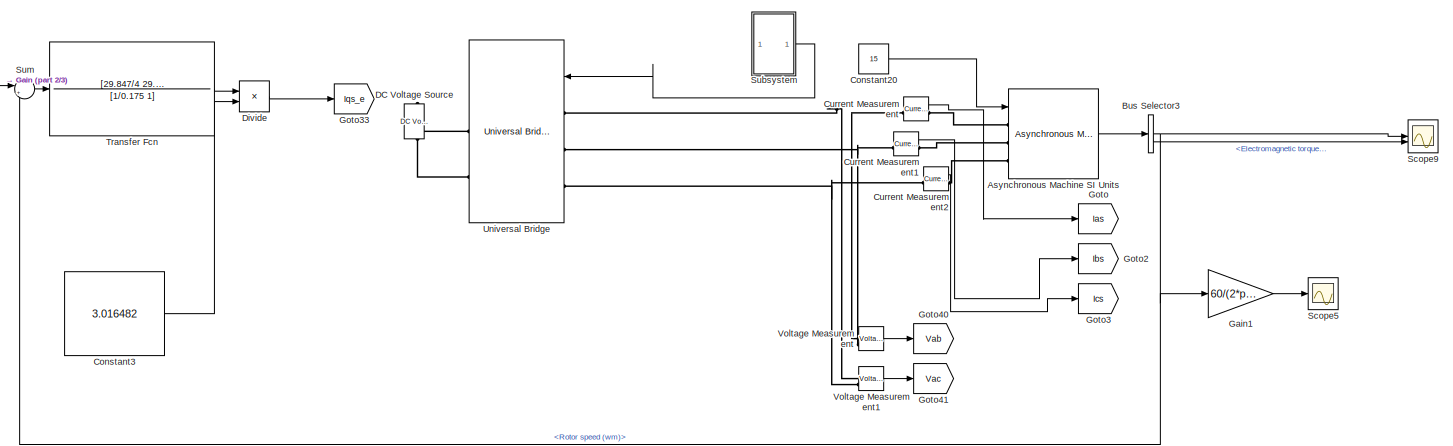
[diagram: root canvas - part 1/3, full width, top band]
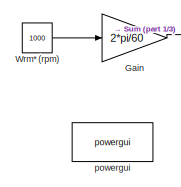
[diagram: root canvas - part 2/3, top left region]
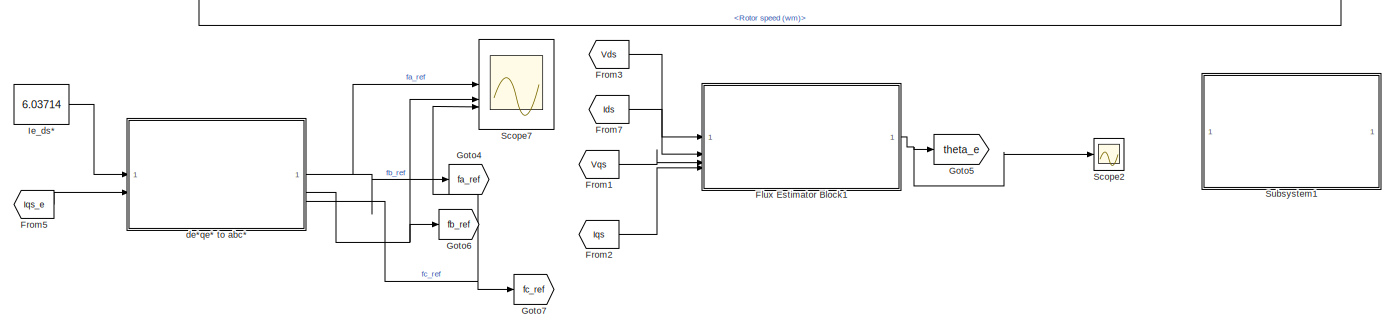
[diagram: root canvas - part 3/3, full width, bottom band]
MODEL slx_421fd923125e
KIND model
CONFIG AbsTol = auto
CONFIG EnableMultiTasking = off
CONFIG FixedStep = auto
CONFIG MaxStep = auto
CONFIG MinStep = auto
CONFIG RelTol = 1e-3
CONFIG SampleTimeConstraint = Unconstrained
CONFIG SolverName = VariableStepAuto
CONFIG StartTime = 0.0
CONFIG StopTime = 5
BLOCK [Reference] Asynchronous Machine SI Units  REF=spsAsynchronousMachineSIUnitsLib/Asynchronous Machine
SI Units
  LibrarySourceBlock = sps_lib/Electrical Machines/Asynchronous Machine\nSI Units
  SourceBlock = spsAsynchronousMachineSIUnitsLib/Asynchronous Machine\nSI Units
  SourceType = Asynchronous Machine
BLOCK [BusSelector] Bus Selector3
  OutputSignals = Mechanical.Rotor speed (wm),Mechanical.Electromagnetic torque Te (N*m)
BLOCK [Constant] Constant20
  Value = 15
BLOCK [Constant] Constant3
  Value = 3.016482
BLOCK [Reference] Current Measurement  REF=spsCurrentMeasurementLib/Current Measurement
  LibrarySourceBlock = sps_lib/Sensors and Measurements/Current Measurement
  SourceBlock = spsCurrentMeasurementLib/Current Measurement
  SourceType = Current Measurement
  UserDataPersistent = on
BLOCK [Reference] Current Measurement1  REF=spsCurrentMeasurementLib/Current Measurement
  LibrarySourceBlock = sps_lib/Sensors and Measurements/Current Measurement
  SourceBlock = spsCurrentMeasurementLib/Current Measurement
  SourceType = Current Measurement
  UserDataPersistent = on
BLOCK [Reference] Current Measurement2  REF=spsCurrentMeasurementLib/Current Measurement
  LibrarySourceBlock = sps_lib/Sensors and Measurements/Current Measurement
  SourceBlock = spsCurrentMeasurementLib/Current Measurement
  SourceType = Current Measurement
  UserDataPersistent = on
BLOCK [Reference] DC Voltage Source  REF=spsDCVoltageSourceLib/DC Voltage Source
  LibrarySourceBlock = sps_lib/Sources/DC Voltage Source
  SourceBlock = spsDCVoltageSourceLib/DC Voltage Source
  SourceType = DC Voltage Source
BLOCK [Product] Divide
  Inputs = */
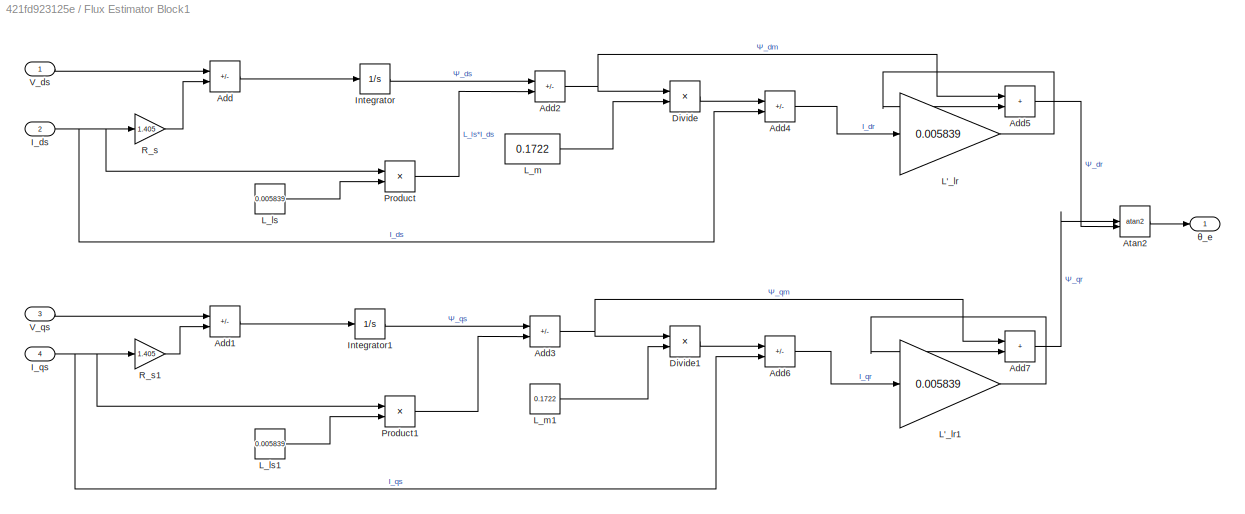
BLOCK [SubSystem] Flux Estimator Block1
BLOCK [Sum] Flux Estimator Block1/Add
  IconShape = rectangular
  Inputs = +-
BLOCK [Sum] Flux Estimator Block1/Add1
  IconShape = rectangular
  Inputs = +-
BLOCK [Sum] Flux Estimator Block1/Add2
  IconShape = rectangular
  Inputs = +-
BLOCK [Sum] Flux Estimator Block1/Add3
  IconShape = rectangular
  Inputs = +-
BLOCK [Sum] Flux Estimator Block1/Add4
  IconShape = rectangular
  Inputs = +-
BLOCK [Sum] Flux Estimator Block1/Add5
  IconShape = rectangular
BLOCK [Sum] Flux Estimator Block1/Add6
  IconShape = rectangular
  Inputs = +-
BLOCK [Sum] Flux Estimator Block1/Add7
  IconShape = rectangular
BLOCK [Trigonometry] Flux Estimator Block1/Atan2
  Operator = atan2
BLOCK [Product] Flux Estimator Block1/Divide
  Inputs = */
BLOCK [Product] Flux Estimator Block1/Divide1
  Inputs = */
BLOCK [Inport] Flux Estimator Block1/I_ds
  Port = 2
BLOCK [Inport] Flux Estimator Block1/I_qs
  Port = 4
BLOCK [Integrator] Flux Estimator Block1/Integrator
BLOCK [Integrator] Flux Estimator Block1/Integrator1
BLOCK [Gain] Flux Estimator Block1/L'_lr
  Gain = 0.005839
BLOCK [Gain] Flux Estimator Block1/L'_lr1
  Gain = 0.005839
BLOCK [Constant] Flux Estimator Block1/L_ls
  Value = 0.005839
BLOCK [Constant] Flux Estimator Block1/L_ls1
  Value = 0.005839
BLOCK [Constant] Flux Estimator Block1/L_m
  Value = 0.1722
BLOCK [Constant] Flux Estimator Block1/L_m1
  Value = 0.1722
BLOCK [Product] Flux Estimator Block1/Product
BLOCK [Product] Flux Estimator Block1/Product1
BLOCK [Gain] Flux Estimator Block1/R_s
  Gain = 1.405
BLOCK [Gain] Flux Estimator Block1/R_s1
  Gain = 1.405
BLOCK [Inport] Flux Estimator Block1/V_ds
BLOCK [Inport] Flux Estimator Block1/V_qs
  Port = 3
BLOCK [Outport] Flux Estimator Block1/θ_e
BLOCK [From] From1
  GotoTag = Vqs
  TagVisibility = global
BLOCK [From] From2
  GotoTag = Iqs
  TagVisibility = global
BLOCK [From] From3
  GotoTag = Vds
  TagVisibility = global
BLOCK [From] From5
  GotoTag = Iqs_e
  TagVisibility = global
BLOCK [From] From7
  GotoTag = Ids
  TagVisibility = global
BLOCK [Gain] Gain
  Gain = 2*pi/60
BLOCK [Gain] Gain1
  Gain = 60/(2*pi)
BLOCK [Goto] Goto
  GotoTag = Ias
  TagVisibility = global
BLOCK [Goto] Goto2
  GotoTag = Ibs
  TagVisibility = global
BLOCK [Goto] Goto3
  GotoTag = Ics
  TagVisibility = global
BLOCK [Goto] Goto33
  GotoTag = Iqs_e
  TagVisibility = global
BLOCK [Goto] Goto4
  GotoTag = fa_ref
  TagVisibility = global
BLOCK [Goto] Goto40
  GotoTag = Vab
  TagVisibility = global
BLOCK [Goto] Goto41
  GotoTag = Vac
  TagVisibility = global
BLOCK [Goto] Goto5
  GotoTag = theta_e
  TagVisibility = global
BLOCK [Goto] Goto6
  GotoTag = fb_ref
  TagVisibility = global
BLOCK [Goto] Goto7
  GotoTag = fc_ref
  TagVisibility = global
BLOCK [Constant] Ie_ds*
  Value = 6.03714
BLOCK [Scope] Scope2
  ActiveDisplayYMaximum = 3.9269805856564539
  ActiveDisplayYMinimum = -3.926985235827948
  Floating = off
  GraphicalSettings = {"AxesScalingProperties":{"AlignXAxis":"Center","AlignYAxis":"Center","AutoScaleXAxisLimits":false,"AxesScaling":"Manual","AxesScalingNumUpdates":10,"ExpandOnly":true,"ScaleAxesLimitsAtStop":false,"XAxisDataRange":100,"YAxisDataRange":80},"DisplayProperties":{"ColorOrder":["auto","auto","auto","auto","auto","auto","auto","auto","auto","auto","auto","auto","auto","auto","auto","auto","auto","auto",...<+2000ch>
  MultipleDisplayCache = [{"MaxYLimMag":10,"MaxYLimReal":3.9269805856564539,"MinYLimMag":0,"MinYLimReal":-3.926985235827948,"PlotAsMagnitudePhase":false,"ShowGrid":true,"ShowLegend":false,"Title":"%<SignalLabel>","YLabel":""}]
  NumInputPorts = 1
  ScopeFrameLocation = window
  WasSavedAsWebScope = on
  WindowPosition = [1.000000,49.000000,1536.000000,793.000000,]
BLOCK [Scope] Scope5
  ActiveDisplayYMaximum = 1796.0943319293749
  ActiveDisplayYMinimum = -1164.848987364373
  DataLoggingVariableName = ScopeData5
  Floating = off
  GraphicalSettings = {"Style":{"BackgroundColor":[0.12941176470588237,0.12941176470588237,0.12941176470588237],"AxesColor":[0.07058823529411765,0.07058823529411765,0.07058823529411765],"LabelsColor":[0.8509803921568627,0.8509803921568627,0.8509803921568627],"PreserveColors":false,"Visible":[true],"LineStyle":["-"],"LineWidth":[1.5],"BarWidth":[0.9],"LineColor":["auto"],"LineFaceAlpha":[1],"LineEdgeAlpha":[1],"Marker":...<+1989ch>
  MultipleDisplayCache = [{"MaxYLimMag":1796.0943319293749,"MaxYLimReal":1796.0943319293749,"MinYLimMag":0,"MinYLimReal":-1164.848987364373,"PlotAsMagnitudePhase":false,"ShowGrid":true,"ShowLegend":false,"Title":"%<SignalLabel>","YLabel":""}]
  NumInputPorts = 1
  ScopeFrameLocation = window
  WasSavedAsWebScope = on
  WindowPosition = [0.000000,36.000000,1536.000000,793.000000,]
BLOCK [Scope] Scope7
  ActiveDisplayYMaximum = 359759.36964912462
  ActiveDisplayYMinimum = -753403.64622958587
  DataLoggingVariableName = ScopeData7
  Floating = off
  GraphicalSettings = {"Style":{"BackgroundColor":[0.12941176470588237,0.12941176470588237,0.12941176470588237],"AxesColor":[0.07058823529411765,0.07058823529411765,0.07058823529411765],"LabelsColor":[0.8509803921568627,0.8509803921568627,0.8509803921568627],"PreserveColors":false,"Visible":[true,true,true],"LineStyle":["-","-","-"],"LineWidth":[1.5,1.5,1.5],"BarWidth":[0.9,0.9,0.9],"LineColor":["auto","auto","auto"],"...<+2848ch>
  LayoutDimensionsString = [3,1]
  MultipleDisplayCache = [{"MaxYLimMag":753403.64622958587,"MaxYLimReal":359759.36964912462,"MinYLimMag":0,"MinYLimReal":-753403.64622958587,"PlotAsMagnitudePhase":false,"ShowGrid":true,"ShowLegend":false,"Title":"%<SignalLabel>","YLabel":""},{"MaxYLimMag":427445.46812296374,"MaxYLimReal":427445.46812296374,"MinYLimMag":0,"MinYLimReal":-202075.75651681254,"PlotAsMagnitudePhase":false,"ShowGrid":true,"ShowLegend":false,"Ti...<+252ch>
  NumInputPorts = 3
  ScopeFrameLocation = window
  WasSavedAsWebScope = on
  WindowPosition = [616.000000,235.000000,560.000000,420.000000,]
BLOCK [Scope] Scope9
  ActiveDisplayYMaximum = 169.48104420293922
  ActiveDisplayYMinimum = 45.4669289684437
  DataLoggingVariableName = ScopeData9
  Floating = off
  GraphicalSettings = {"Style":{"BackgroundColor":[0.12941176470588237,0.12941176470588237,0.12941176470588237],"AxesColor":[0.07058823529411765,0.07058823529411765,0.07058823529411765],"LabelsColor":[0.8509803921568627,0.8509803921568627,0.8509803921568627],"PreserveColors":false,"Visible":[true,true],"LineStyle":["-","-"],"LineWidth":[1.5,1.5],"BarWidth":[0.9,0.9],"LineColor":["auto","auto"],"LineFaceAlpha":[1,1],"Li...<+2510ch>
  LayoutDimensionsString = [2,1]
  MultipleDisplayCache = [{"MaxYLimMag":169.48104420293922,"MaxYLimReal":169.48104420293922,"MinYLimMag":45.4669289684437,"MinYLimReal":45.4669289684437,"PlotAsMagnitudePhase":false,"ShowGrid":true,"ShowLegend":false,"Title":"%<SignalLabel>","YLabel":""},{"MaxYLimMag":135.06435626787029,"MaxYLimReal":135.06435626787029,"MinYLimMag":0,"MinYLimReal":-97.179111705864642,"PlotAsMagnitudePhase":false,"ShowGrid":true,"ShowLegen...<+47ch>
  NumInputPorts = 2
  ScopeFrameLocation = window
  WasSavedAsWebScope = on
  WindowPosition = [537.000000,172.000000,560.000000,420.000000,]
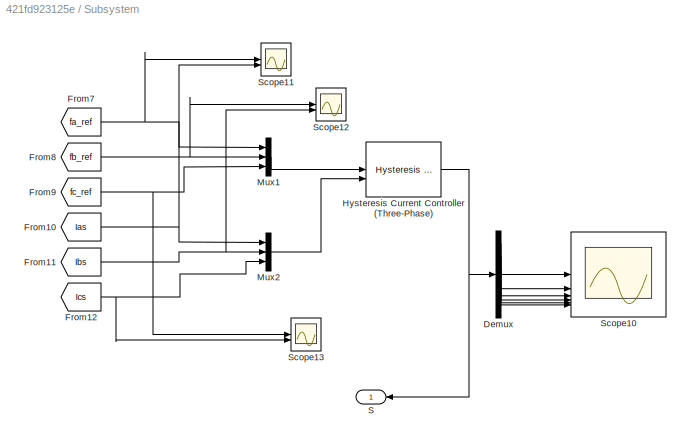
BLOCK [SubSystem] Subsystem
BLOCK [Demux] Subsystem/Demux
  Outputs = 6
BLOCK [From] Subsystem/From10
  GotoTag = Ias
  TagVisibility = global
BLOCK [From] Subsystem/From11
  GotoTag = Ibs
  TagVisibility = global
BLOCK [From] Subsystem/From12
  GotoTag = Ics
  TagVisibility = global
BLOCK [From] Subsystem/From7
  GotoTag = fa_ref
  TagVisibility = global
BLOCK [From] Subsystem/From8
  GotoTag = fb_ref
  TagVisibility = global
BLOCK [From] Subsystem/From9
  GotoTag = fc_ref
  TagVisibility = global
BLOCK [Reference] Subsystem/Hysteresis Current Controller (Three-Phase)  REF=eeHysteresisControl/Hysteresis Current
Controller
(Three-Phase)
  LibrarySourceBlock = ee_sl_lib/General Machine\nControl/Hysteresis Current\nController\n(Three-Phase)
  SourceBlock = eeHysteresisControl/Hysteresis Current\nController\n(Three-Phase)
  SourceType = Hysteresis Current Controller (Three-Phase)
BLOCK [Mux] Subsystem/Mux1
  DisplayOption = bar
  Inputs = 3
BLOCK [Mux] Subsystem/Mux2
  DisplayOption = bar
  Inputs = 3
BLOCK [Outport] Subsystem/S
BLOCK [Scope] Subsystem/Scope10
  ActiveDisplayYMaximum = 1.125
  ActiveDisplayYMinimum = -0.12499999999999997
  DataLoggingVariableName = ScopeData11
  Floating = off
  GraphicalSettings = {"Style":{"BackgroundColor":[0.12941176470588237,0.12941176470588237,0.12941176470588237],"AxesColor":[0.07058823529411765,0.07058823529411765,0.07058823529411765],"LabelsColor":[0.8509803921568627,0.8509803921568627,0.8509803921568627],"PreserveColors":false,"Visible":[true,true,true,true,true,true],"LineStyle":["-","-","-","-","-","-"],"LineWidth":[1.5,1.5,1.5,1.5,1.5,1.5],"BarWidth":[0.9,0.9,0....<+5196ch>
  LayoutDimensionsString = [5,2]
  MultipleDisplayCache = [{"MaxYLimMag":1.125,"MaxYLimReal":1.125,"MinYLimMag":0,"MinYLimReal":-0.12499999999999997,"PlotAsMagnitudePhase":false,"ShowGrid":true,"ShowLegend":false,"Title":"%<SignalLabel>","YLabel":""},{"MaxYLimMag":1.125,"MaxYLimReal":1.125,"MinYLimMag":0,"MinYLimReal":-0.12499999999999997,"PlotAsMagnitudePhase":false,"ShowGrid":true,"ShowLegend":false,"Title":"%<SignalLabel>","YLabel":""},{"MaxYLimMag":1...<+1509ch>
  NumInputPorts = 6
  ScopeFrameLocation = window
  WasSavedAsWebScope = on
  WindowPosition = [440.000000,240.000000,560.000000,420.000000,]
BLOCK [Scope] Subsystem/Scope11
  ActiveDisplayYMaximum = 63.451918813451442
  ActiveDisplayYMinimum = 1.6721282372561657
  DataLoggingVariableName = ScopeData12
  Floating = off
  GraphicalSettings = {"AxesScalingProperties":{"AlignXAxis":"Center","AlignYAxis":"Center","AutoScaleXAxisLimits":false,"AxesScaling":"Manual","AxesScalingNumUpdates":10,"ExpandOnly":true,"ScaleAxesLimitsAtStop":false,"XAxisDataRange":100,"YAxisDataRange":80},"DisplayProperties":{"ColorOrder":["auto","auto","auto","auto","auto","auto","auto","auto","auto","auto","auto","auto","auto","auto","auto","auto","auto","auto",...<+2171ch>
  MultipleDisplayCache = [{"MaxYLimMag":63.451918813451442,"MaxYLimReal":63.451918813451442,"MinYLimMag":1.6721282372561657,"MinYLimReal":1.6721282372561657,"PlotAsMagnitudePhase":false,"ShowGrid":true,"ShowLegend":true,"Title":"%<SignalLabel>","YLabel":""}]
  NumInputPorts = 2
  ScopeFrameLocation = window
  ShowLegend = on
  WasSavedAsWebScope = on
  WindowPosition = [440.000000,240.000000,560.000000,420.000000,]
BLOCK [Scope] Subsystem/Scope12
  ActiveDisplayYMaximum = 2.5704136454950897
  ActiveDisplayYMinimum = -78.434145790718887
  DataLoggingVariableName = ScopeData13
  Floating = off
  GraphicalSettings = {"AxesScalingProperties":{"AlignXAxis":"Center","AlignYAxis":"Center","AutoScaleXAxisLimits":false,"AxesScaling":"Manual","AxesScalingNumUpdates":10,"ExpandOnly":true,"ScaleAxesLimitsAtStop":false,"XAxisDataRange":100,"YAxisDataRange":80},"DisplayProperties":{"ColorOrder":["auto","auto","auto","auto","auto","auto","auto","auto","auto","auto","auto","auto","auto","auto","auto","auto","auto","auto",...<+2143ch>
  MultipleDisplayCache = [{"MaxYLimMag":78.434145790718887,"MaxYLimReal":2.5704136454950897,"MinYLimMag":0,"MinYLimReal":-78.434145790718887,"PlotAsMagnitudePhase":false,"ShowGrid":true,"ShowLegend":true,"Title":"%<SignalLabel>","YLabel":""}]
  NumInputPorts = 2
  ScopeFrameLocation = window
  ShowLegend = on
  WasSavedAsWebScope = on
  WindowPosition = [440.000000,240.000000,560.000000,420.000000,]
BLOCK [Scope] Subsystem/Scope13
  ActiveDisplayYMaximum = 41.352885154542406
  ActiveDisplayYMinimum = -68.536634079904516
  DataLoggingVariableName = ScopeData14
  Floating = off
  GraphicalSettings = {"AxesScalingProperties":{"AlignXAxis":"Center","AlignYAxis":"Center","AutoScaleXAxisLimits":false,"AxesScaling":"Manual","AxesScalingNumUpdates":10,"ExpandOnly":true,"ScaleAxesLimitsAtStop":false,"XAxisDataRange":100,"YAxisDataRange":80},"DisplayProperties":{"ColorOrder":["auto","auto","auto","auto","auto","auto","auto","auto","auto","auto","auto","auto","auto","auto","auto","auto","auto","auto",...<+2159ch>
  MultipleDisplayCache = [{"MaxYLimMag":68.536634079904516,"MaxYLimReal":41.352885154542406,"MinYLimMag":0,"MinYLimReal":-68.536634079904516,"PlotAsMagnitudePhase":false,"ShowGrid":true,"ShowLegend":true,"Title":"%<SignalLabel>","YLabel":""}]
  NumInputPorts = 2
  ScopeFrameLocation = window
  ShowLegend = on
  WasSavedAsWebScope = on
  WindowPosition = [1.000000,88.000000,1440.000000,760.000000,]
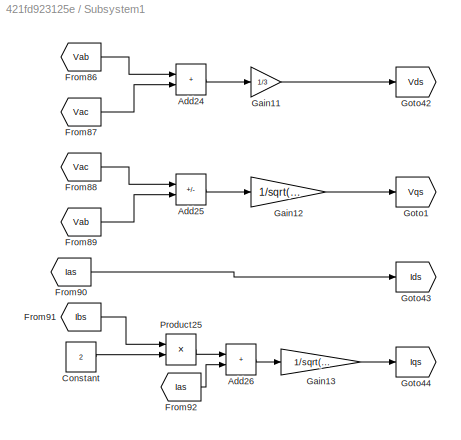
BLOCK [SubSystem] Subsystem1
BLOCK [Sum] Subsystem1/Add24
  IconShape = rectangular
BLOCK [Sum] Subsystem1/Add25
  IconShape = rectangular
  Inputs = +-
BLOCK [Sum] Subsystem1/Add26
  IconShape = rectangular
BLOCK [Constant] Subsystem1/Constant
  Value = 2
BLOCK [From] Subsystem1/From86
  GotoTag = Vab
  TagVisibility = global
BLOCK [From] Subsystem1/From87
  GotoTag = Vac
  TagVisibility = global
BLOCK [From] Subsystem1/From88
  GotoTag = Vac
  TagVisibility = global
BLOCK [From] Subsystem1/From89
  GotoTag = Vab
  TagVisibility = global
BLOCK [From] Subsystem1/From90
  GotoTag = Ias
  TagVisibility = global
BLOCK [From] Subsystem1/From91
  GotoTag = Ibs
  TagVisibility = global
BLOCK [From] Subsystem1/From92
  GotoTag = Ias
  TagVisibility = global
BLOCK [Gain] Subsystem1/Gain11
  Gain = 1/3
BLOCK [Gain] Subsystem1/Gain12
  Gain = 1/sqrt(3)
BLOCK [Gain] Subsystem1/Gain13
  Gain = 1/sqrt(3)
BLOCK [Goto] Subsystem1/Goto1
  GotoTag = Vqs
  TagVisibility = global
BLOCK [Goto] Subsystem1/Goto42
  GotoTag = Vds
  TagVisibility = global
BLOCK [Goto] Subsystem1/Goto43
  GotoTag = Ids
  TagVisibility = global
BLOCK [Goto] Subsystem1/Goto44
  GotoTag = Iqs
  TagVisibility = global
BLOCK [Product] Subsystem1/Product25
BLOCK [Sum] Sum
  Inputs = |+-
BLOCK [TransferFcn] Transfer Fcn
  Denominator = [1/0.175 1]
  Numerator = [29.847/4 29.847]
BLOCK [Reference] Universal Bridge  REF=spsUniversalBridgeLib/Universal Bridge
  LibrarySourceBlock = sps_lib/Power Electronics/Universal Bridge
  NameLocation = top
  SourceBlock = spsUniversalBridgeLib/Universal Bridge
  SourceType = Universal Bridge
BLOCK [Reference] Voltage Measurement  REF=spsVoltageMeasurementLib/Voltage Measurement
  LibrarySourceBlock = sps_lib/Sensors and Measurements/Voltage Measurement
  SourceBlock = spsVoltageMeasurementLib/Voltage Measurement
  SourceType = Voltage Measurement
  UserDataPersistent = on
BLOCK [Reference] Voltage Measurement1  REF=spsVoltageMeasurementLib/Voltage Measurement
  LibrarySourceBlock = sps_lib/Sensors and Measurements/Voltage Measurement
  SourceBlock = spsVoltageMeasurementLib/Voltage Measurement
  SourceType = Voltage Measurement
  UserDataPersistent = on
BLOCK [Constant] Wrm* (rpm)
  Value = 1000
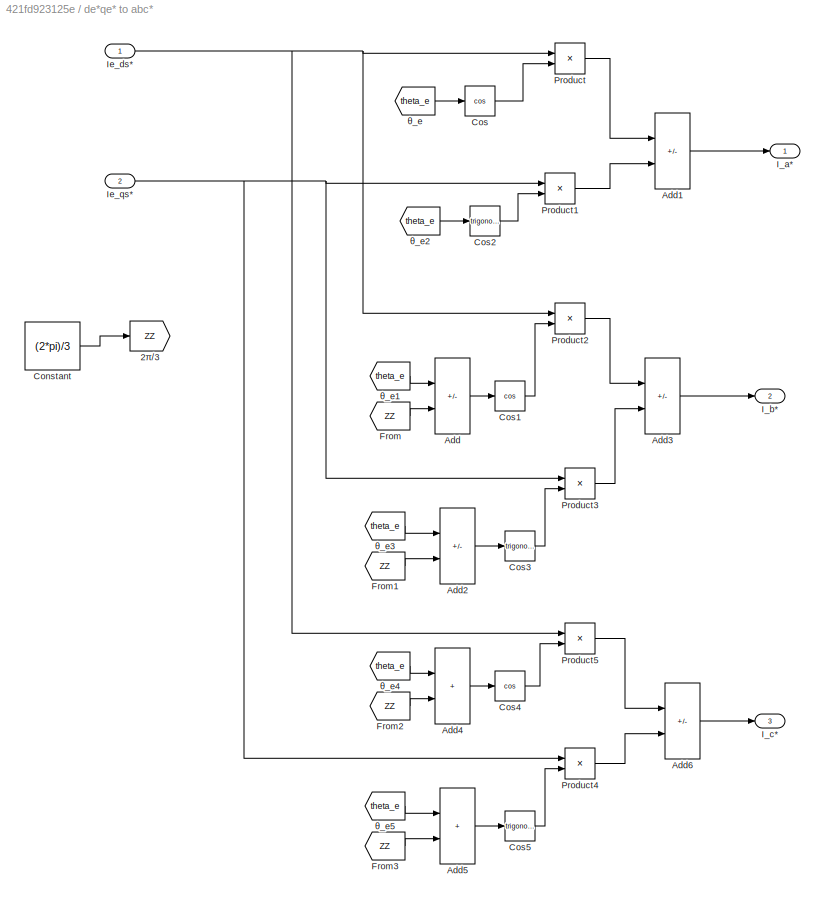
BLOCK [SubSystem] de*qe* to abc*
BLOCK [Goto] de*qe* to abc*/2π//3
  GotoTag = ZZ
BLOCK [Sum] de*qe* to abc*/Add
  IconShape = rectangular
  Inputs = +-
BLOCK [Sum] de*qe* to abc*/Add1
  IconShape = rectangular
  Inputs = +-
BLOCK [Sum] de*qe* to abc*/Add2
  IconShape = rectangular
  Inputs = +-
BLOCK [Sum] de*qe* to abc*/Add3
  IconShape = rectangular
  Inputs = +-
BLOCK [Sum] de*qe* to abc*/Add4
  IconShape = rectangular
BLOCK [Sum] de*qe* to abc*/Add5
  IconShape = rectangular
BLOCK [Sum] de*qe* to abc*/Add6
  IconShape = rectangular
  Inputs = +-
BLOCK [Constant] de*qe* to abc*/Constant
  Value = (2*pi)/3
BLOCK [Trigonometry] de*qe* to abc*/Cos
  Operator = cos
BLOCK [Trigonometry] de*qe* to abc*/Cos1
  Operator = cos
BLOCK [Trigonometry] de*qe* to abc*/Cos2
BLOCK [Trigonometry] de*qe* to abc*/Cos3
BLOCK [Trigonometry] de*qe* to abc*/Cos4
  Operator = cos
BLOCK [Trigonometry] de*qe* to abc*/Cos5
BLOCK [From] de*qe* to abc*/From
  GotoTag = ZZ
BLOCK [From] de*qe* to abc*/From1
  GotoTag = ZZ
BLOCK [From] de*qe* to abc*/From2
  GotoTag = ZZ
BLOCK [From] de*qe* to abc*/From3
  GotoTag = ZZ
BLOCK [Outport] de*qe* to abc*/I_a*
BLOCK [Outport] de*qe* to abc*/I_b*
  Port = 2
BLOCK [Outport] de*qe* to abc*/I_c*
  Port = 3
BLOCK [Inport] de*qe* to abc*/Ie_ds*
BLOCK [Inport] de*qe* to abc*/Ie_qs*
  Port = 2
BLOCK [Product] de*qe* to abc*/Product
BLOCK [Product] de*qe* to abc*/Product1
BLOCK [Product] de*qe* to abc*/Product2
BLOCK [Product] de*qe* to abc*/Product3
BLOCK [Product] de*qe* to abc*/Product4
BLOCK [Product] de*qe* to abc*/Product5
BLOCK [From] de*qe* to abc*/θ_e
  GotoTag = theta_e
  TagVisibility = global
BLOCK [From] de*qe* to abc*/θ_e1
  GotoTag = theta_e
  NameLocation = top
  TagVisibility = global
BLOCK [From] de*qe* to abc*/θ_e2
  GotoTag = theta_e
  TagVisibility = global
BLOCK [From] de*qe* to abc*/θ_e3
  GotoTag = theta_e
  NameLocation = top
  TagVisibility = global
BLOCK [From] de*qe* to abc*/θ_e4
  GotoTag = theta_e
  NameLocation = top
  TagVisibility = global
BLOCK [From] de*qe* to abc*/θ_e5
  GotoTag = theta_e
  NameLocation = top
  TagVisibility = global
BLOCK [Reference] powergui  REF=sps_lib/powergui
  LibrarySourceBlock = sps_lib/powergui
  Priority = 1
  SourceBlock = sps_lib/powergui
  SourceType = PSB option menu block
LINE Asynchronous Machine SI Units:1 -> Bus Selector3:1
NET Bus Selector3:1 -> Gain1:1, Scope9:1, Sum:2
LINE Bus Selector3:2 -> Scope9:2
LINE Constant20:1 -> Asynchronous Machine SI Units:1
LINE Constant3:1 -> Divide:2
LINE Current Measurement1:1 -> Goto2:1
LINE Current Measurement2:1 -> Goto3:1
LINE Current Measurement:1 -> Goto:1
LINE Divide:1 -> Goto33:1
LINE Flux Estimator Block1/Add1:1 -> Flux Estimator Block1/Integrator1:1
NET Flux Estimator Block1/Add2:1 -> Flux Estimator Block1/Add5:1, Flux Estimator Block1/Divide:1
NET Flux Estimator Block1/Add3:1 -> Flux Estimator Block1/Add7:1, Flux Estimator Block1/Divide1:1
LINE Flux Estimator Block1/Add4:1 -> Flux Estimator Block1/L'_lr:1
LINE Flux Estimator Block1/Add5:1 -> Flux Estimator Block1/Atan2:2
LINE Flux Estimator Block1/Add6:1 -> Flux Estimator Block1/L'_lr1:1
LINE Flux Estimator Block1/Add7:1 -> Flux Estimator Block1/Atan2:1
LINE Flux Estimator Block1/Add:1 -> Flux Estimator Block1/Integrator:1
LINE Flux Estimator Block1/Atan2:1 -> Flux Estimator Block1/θ_e:1
LINE Flux Estimator Block1/Divide1:1 -> Flux Estimator Block1/Add6:1
LINE Flux Estimator Block1/Divide:1 -> Flux Estimator Block1/Add4:1
NET Flux Estimator Block1/I_ds:1 -> Flux Estimator Block1/Add4:2, Flux Estimator Block1/Product:1, Flux Estimator Block1/R_s:1
NET Flux Estimator Block1/I_qs:1 -> Flux Estimator Block1/Add6:2, Flux Estimator Block1/Product1:1, Flux Estimator Block1/R_s1:1
LINE Flux Estimator Block1/Integrator1:1 -> Flux Estimator Block1/Add3:1
LINE Flux Estimator Block1/Integrator:1 -> Flux Estimator Block1/Add2:1
LINE Flux Estimator Block1/L'_lr1:1 -> Flux Estimator Block1/Add7:2
LINE Flux Estimator Block1/L'_lr:1 -> Flux Estimator Block1/Add5:2
LINE Flux Estimator Block1/L_ls1:1 -> Flux Estimator Block1/Product1:2
LINE Flux Estimator Block1/L_ls:1 -> Flux Estimator Block1/Product:2
LINE Flux Estimator Block1/L_m1:1 -> Flux Estimator Block1/Divide1:2
LINE Flux Estimator Block1/L_m:1 -> Flux Estimator Block1/Divide:2
LINE Flux Estimator Block1/Product1:1 -> Flux Estimator Block1/Add3:2
LINE Flux Estimator Block1/Product:1 -> Flux Estimator Block1/Add2:2
LINE Flux Estimator Block1/R_s1:1 -> Flux Estimator Block1/Add1:2
LINE Flux Estimator Block1/R_s:1 -> Flux Estimator Block1/Add:2
LINE Flux Estimator Block1/V_ds:1 -> Flux Estimator Block1/Add:1
LINE Flux Estimator Block1/V_qs:1 -> Flux Estimator Block1/Add1:1
NET Flux Estimator Block1:1 -> Goto5:1, Scope2:1
LINE From1:1 -> Flux Estimator Block1:3
LINE From2:1 -> Flux Estimator Block1:4
LINE From3:1 -> Flux Estimator Block1:1
LINE From5:1 -> de*qe* to abc*:2
LINE From7:1 -> Flux Estimator Block1:2
LINE Gain1:1 -> Scope5:1
LINE Gain:1 -> Sum:1
LINE Ie_ds*:1 -> de*qe* to abc*:1
LINE Subsystem/Demux:1 -> Subsystem/Scope10:1
LINE Subsystem/Demux:2 -> Subsystem/Scope10:2
LINE Subsystem/Demux:3 -> Subsystem/Scope10:3
LINE Subsystem/Demux:4 -> Subsystem/Scope10:4
LINE Subsystem/Demux:5 -> Subsystem/Scope10:5
LINE Subsystem/Demux:6 -> Subsystem/Scope10:6
NET Subsystem/From10:1 -> Subsystem/Mux2:1, Subsystem/Scope11:2
NET Subsystem/From11:1 -> Subsystem/Mux2:2, Subsystem/Scope12:2
NET Subsystem/From12:1 -> Subsystem/Mux2:3, Subsystem/Scope13:2
NET Subsystem/From7:1 -> Subsystem/Mux1:1, Subsystem/Scope11:1
NET Subsystem/From8:1 -> Subsystem/Mux1:2, Subsystem/Scope12:1
NET Subsystem/From9:1 -> Subsystem/Mux1:3, Subsystem/Scope13:1
NET Subsystem/Hysteresis Current Controller (Three-Phase):1 -> Subsystem/Demux:1, Subsystem/S:1
LINE Subsystem/Mux1:1 -> Subsystem/Hysteresis Current Controller (Three-Phase):1
LINE Subsystem/Mux2:1 -> Subsystem/Hysteresis Current Controller (Three-Phase):2
LINE Subsystem1/Add24:1 -> Subsystem1/Gain11:1
LINE Subsystem1/Add25:1 -> Subsystem1/Gain12:1
LINE Subsystem1/Add26:1 -> Subsystem1/Gain13:1
LINE Subsystem1/Constant:1 -> Subsystem1/Product25:2
LINE Subsystem1/From86:1 -> Subsystem1/Add24:1
LINE Subsystem1/From87:1 -> Subsystem1/Add24:2
LINE Subsystem1/From88:1 -> Subsystem1/Add25:1
LINE Subsystem1/From89:1 -> Subsystem1/Add25:2
LINE Subsystem1/From90:1 -> Subsystem1/Goto43:1
LINE Subsystem1/From91:1 -> Subsystem1/Product25:1
LINE Subsystem1/From92:1 -> Subsystem1/Add26:2
LINE Subsystem1/Gain11:1 -> Subsystem1/Goto42:1
LINE Subsystem1/Gain12:1 -> Subsystem1/Goto1:1
LINE Subsystem1/Gain13:1 -> Subsystem1/Goto44:1
LINE Subsystem1/Product25:1 -> Subsystem1/Add26:1
LINE Subsystem:1 -> Universal Bridge:1
LINE Sum:1 -> Transfer Fcn:1
LINE Transfer Fcn:1 -> Divide:1
LINE Voltage Measurement1:1 -> Goto41:1
LINE Voltage Measurement:1 -> Goto40:1
LINE Wrm* (rpm):1 -> Gain:1
LINE de*qe* to abc*/Add1:1 -> de*qe* to abc*/I_a*:1
LINE de*qe* to abc*/Add2:1 -> de*qe* to abc*/Cos3:1
LINE de*qe* to abc*/Add3:1 -> de*qe* to abc*/I_b*:1
LINE de*qe* to abc*/Add4:1 -> de*qe* to abc*/Cos4:1
LINE de*qe* to abc*/Add5:1 -> de*qe* to abc*/Cos5:1
LINE de*qe* to abc*/Add6:1 -> de*qe* to abc*/I_c*:1
LINE de*qe* to abc*/Add:1 -> de*qe* to abc*/Cos1:1
LINE de*qe* to abc*/Constant:1 -> de*qe* to abc*/2π//3:1
LINE de*qe* to abc*/Cos1:1 -> de*qe* to abc*/Product2:2
LINE de*qe* to abc*/Cos2:1 -> de*qe* to abc*/Product1:2
LINE de*qe* to abc*/Cos3:1 -> de*qe* to abc*/Product3:2
LINE de*qe* to abc*/Cos4:1 -> de*qe* to abc*/Product5:2
LINE de*qe* to abc*/Cos5:1 -> de*qe* to abc*/Product4:2
LINE de*qe* to abc*/Cos:1 -> de*qe* to abc*/Product:2
LINE de*qe* to abc*/From1:1 -> de*qe* to abc*/Add2:2
LINE de*qe* to abc*/From2:1 -> de*qe* to abc*/Add4:2
LINE de*qe* to abc*/From3:1 -> de*qe* to abc*/Add5:2
LINE de*qe* to abc*/From:1 -> de*qe* to abc*/Add:2
NET de*qe* to abc*/Ie_ds*:1 -> de*qe* to abc*/Product2:1, de*qe* to abc*/Product5:1, de*qe* to abc*/Product:1
NET de*qe* to abc*/Ie_qs*:1 -> de*qe* to abc*/Product1:1, de*qe* to abc*/Product3:1, de*qe* to abc*/Product4:1
LINE de*qe* to abc*/Product1:1 -> de*qe* to abc*/Add1:2
LINE de*qe* to abc*/Product2:1 -> de*qe* to abc*/Add3:1
LINE de*qe* to abc*/Product3:1 -> de*qe* to abc*/Add3:2
LINE de*qe* to abc*/Product4:1 -> de*qe* to abc*/Add6:2
LINE de*qe* to abc*/Product5:1 -> de*qe* to abc*/Add6:1
LINE de*qe* to abc*/Product:1 -> de*qe* to abc*/Add1:1
LINE de*qe* to abc*/θ_e1:1 -> de*qe* to abc*/Add:1
LINE de*qe* to abc*/θ_e2:1 -> de*qe* to abc*/Cos2:1
LINE de*qe* to abc*/θ_e3:1 -> de*qe* to abc*/Add2:1
LINE de*qe* to abc*/θ_e4:1 -> de*qe* to abc*/Add4:1
LINE de*qe* to abc*/θ_e5:1 -> de*qe* to abc*/Add5:1
LINE de*qe* to abc*/θ_e:1 -> de*qe* to abc*/Cos:1
NET de*qe* to abc*:1 -> Goto4:1, Scope7:1
NET de*qe* to abc*:2 -> Goto6:1, Scope7:2
NET de*qe* to abc*:3 -> Goto7:1, Scope7:3
PLINE Asynchronous Machine SI Units:LConn1 -- Current Measurement:RConn1
PLINE Asynchronous Machine SI Units:LConn2 -- Current Measurement1:RConn1
PLINE Asynchronous Machine SI Units:LConn3 -- Current Measurement2:RConn1
PNET net1: Current Measurement1:LConn1 -- Universal Bridge:LConn2 -- Voltage Measurement:LConn2
PNET net2: Current Measurement2:LConn1 -- Universal Bridge:LConn3 -- Voltage Measurement1:LConn2
PNET net3: Current Measurement:LConn1 -- Universal Bridge:LConn1 -- Voltage Measurement1:LConn1 -- Voltage Measurement:LConn1
PLINE DC Voltage Source:LConn1 -- Universal Bridge:RConn2
PLINE DC Voltage Source:RConn1 -- Universal Bridge:RConn1
note: NET lines group one-source signal fan-out (src -> all destinations, sorted); 1:1 wires keep LINE; PNET lines group multi-terminal physical nets as a canonical sorted terminal list (undirected conserving connections); 2-terminal nets keep the pairwise PLINE form
